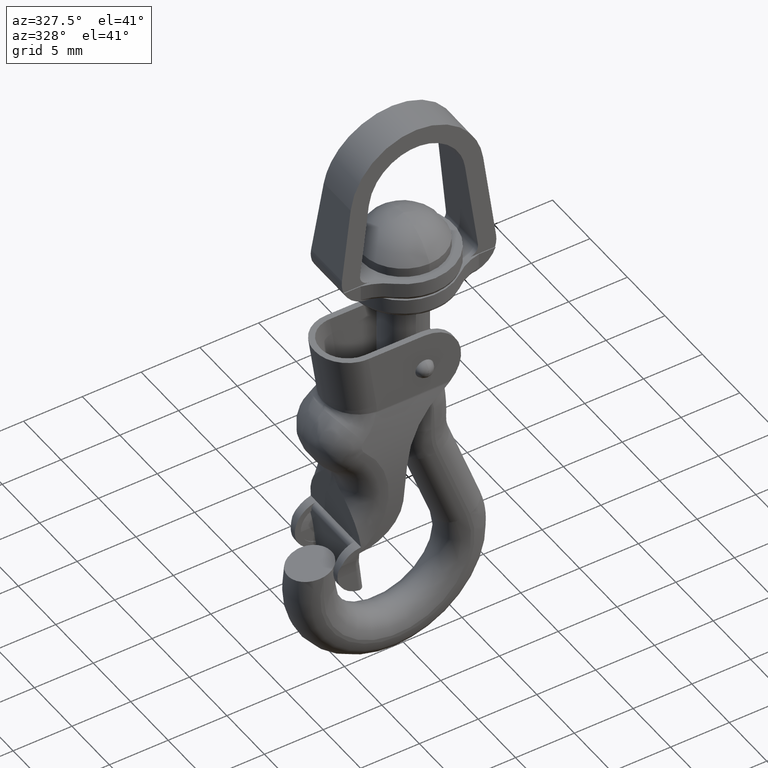
[diagram: clean part render]
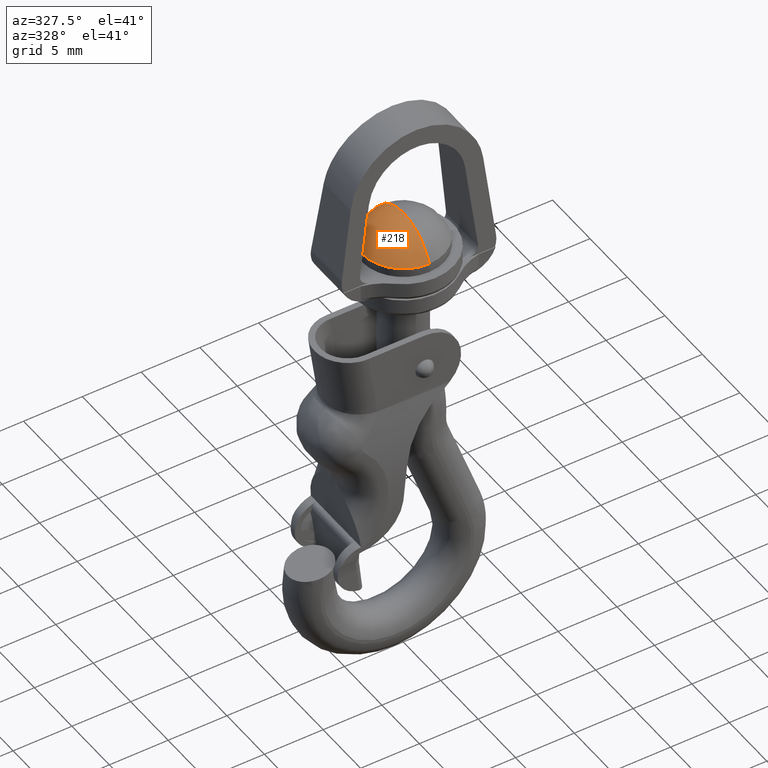
[diagram: same view with one face highlighted and labeled with its STEP entity id]
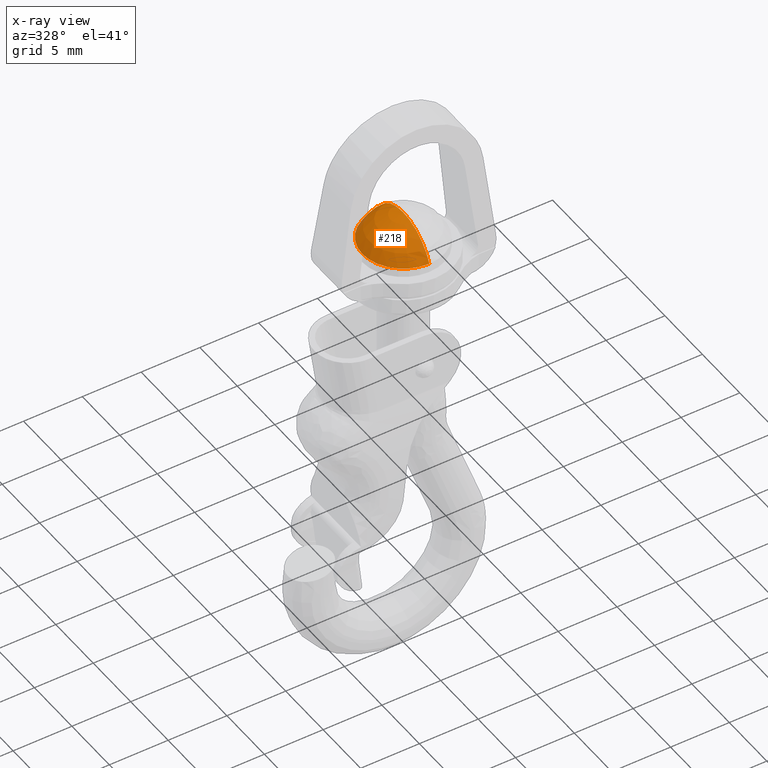
[diagram: x-ray of the same camera — body ghosted, the highlighted face saturated]
A machine part, auxiliary view. The second image highlights one B-rep face of the part: STEP entity #218.
The next image is the same camera in x-ray: the body ghosted, the highlighted face saturated — about 2% of this face is hidden behind the body in this view.
In plain terms, the highlighted spherical surface has radius 3.7593 mm.
Its self-contained STEP definition (entity closure, byte-faithful):
#218=ADVANCED_FACE('',(#1003),#1002,.T.);
#1002=SPHERICAL_SURFACE('',#2644,3.75925925926E+00);
#1003=FACE_OUTER_BOUND('',#2645,.T.);
#2641=CARTESIAN_POINT('',(0.00000000000E+00,3.21964677141E-13,8.98518518518E+00));
#2642=DIRECTION('',(-0.00000000000E+00,-0.00000000000E+00,-1.00000000000E+00));
#2643=DIRECTION('',(4.04453249759E-21,-1.00000000000E+00,0.00000000000E+00));
#2644=AXIS2_PLACEMENT_3D('',#2641,#2642,#2643);
#2645=EDGE_LOOP('',(#4130,#4131,#4132,#4133));
#4130=ORIENTED_EDGE('',*,*,#4797,.T.);
#4131=ORIENTED_EDGE('',*,*,#4794,.F.);
#4132=ORIENTED_EDGE('',*,*,#4793,.F.);
#4133=ORIENTED_EDGE('',*,*,#4798,.F.);
#4793=EDGE_CURVE('',#6297,#6304,#6305,.T.);
#4794=EDGE_CURVE('',#6304,#6311,#6312,.T.);
#4797=EDGE_CURVE('',#6330,#6311,#6331,.T.);
#4798=EDGE_CURVE('',#6330,#6297,#6337,.T.);
#6297=VERTEX_POINT('',#8852);
#6304=VERTEX_POINT('',#8856);
#6305=CIRCLE('',#8860,3.47832796500E+00);
#6311=VERTEX_POINT('',#8861);
#6312=CIRCLE('',#8865,3.47832796500E+00);
#6330=VERTEX_POINT('',#8873);
#6331=(BOUNDED_CURVE() B_SPLINE_CURVE(2,(#8874,#8875,#8876),.UNSPECIFIED.,.F.,.F.) B_SPLINE_CURVE_WITH_KNOTS((3,3),(0.00000000000E+00,1.00000000000E+00),.UNSPECIFIED.) CURVE() GEOMETRIC_REPRESENTATION_ITEM() RATIONAL_B_SPLINE_CURVE((1.00000000000E+00,8.30454798537E-01,1.00000000000E+00)) REPRESENTATION_ITEM('') );
#6337=(BOUNDED_CURVE() B_SPLINE_CURVE(2,(#8877,#8878,#8879),.UNSPECIFIED.,.F.,.F.) B_SPLINE_CURVE_WITH_KNOTS((3,3),(0.00000000000E+00,1.00000000000E+00),.UNSPECIFIED.) CURVE() GEOMETRIC_REPRESENTATION_ITEM() RATIONAL_B_SPLINE_CURVE((7.50000000000E-01,6.22841098903E-01,7.50000000000E-01)) REPRESENTATION_ITEM('') );
#8852=CARTESIAN_POINT('',(-2.85318233093E-11,-3.47832796500E+00,1.04111111111E+01));
#8856=CARTESIAN_POINT('',(-3.47832796500E+00,0.00000000000E+00,1.04111111111E+01));
#8857=CARTESIAN_POINT('',(0.00000000000E+00,0.00000000000E+00,1.04111111111E+01));
#8858=DIRECTION('',(-0.00000000000E+00,0.00000000000E+00,-1.00000000000E+00));
#8859=DIRECTION('',(-1.00000000000E+00,-1.22460635382E-16,0.00000000000E+00));
#8860=AXIS2_PLACEMENT_3D('',#8857,#8858,#8859);
#8861=CARTESIAN_POINT('',(2.50360078791E-09,3.47832796500E+00,1.04111111111E+01));
#8862=CARTESIAN_POINT('',(0.00000000000E+00,0.00000000000E+00,1.04111111111E+01));
#8863=DIRECTION('',(-0.00000000000E+00,0.00000000000E+00,-1.00000000000E+00));
#8864=DIRECTION('',(-1.00000000000E+00,-1.22460635382E-16,0.00000000000E+00));
#8865=AXIS2_PLACEMENT_3D('',#8862,#8863,#8864);
#8873=CARTESIAN_POINT('',(2.81889982444E-32,3.22194865382E-13,1.27444444444E+01));
#8874=CARTESIAN_POINT('',(2.81889982444E-32,3.22194865382E-13,1.27444444444E+01));
#8875=CARTESIAN_POINT('',(3.08819733180E-16,2.52178777463E+00,1.27444444444E+01));
#8876=CARTESIAN_POINT('',(4.25958252662E-16,3.47832796500E+00,1.04111111111E+01));
#8877=CARTESIAN_POINT('',(-4.93038065763E-32,3.21734488900E-13,1.27444444444E+01));
#8878=CARTESIAN_POINT('',(-5.34754222183E-16,-2.52178777462E+00,1.27444444444E+01));
#8879=CARTESIAN_POINT('',(-2.96059473233E-16,-3.47832796500E+00,1.04111111111E+01));